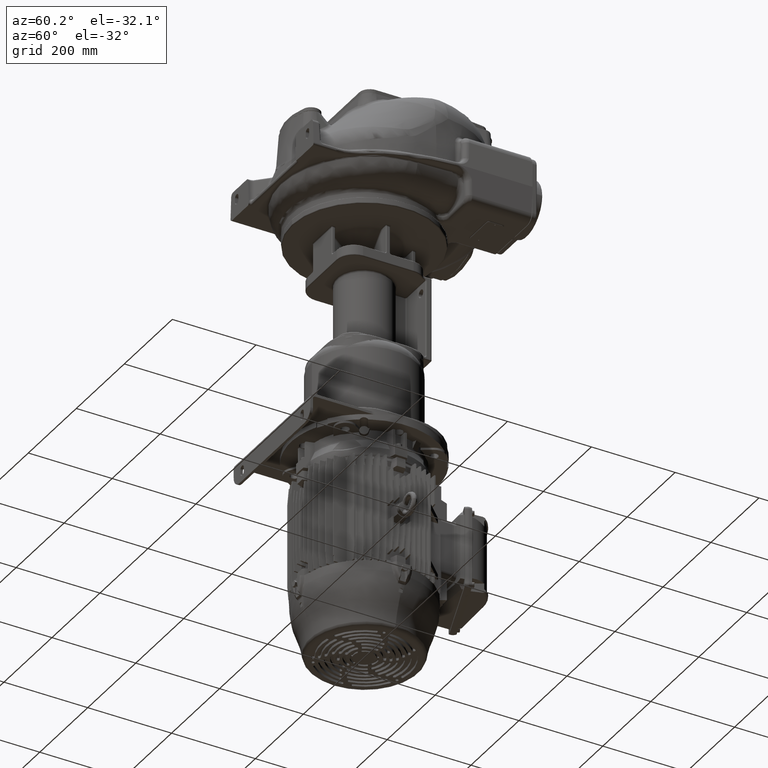
[diagram: clean part render]
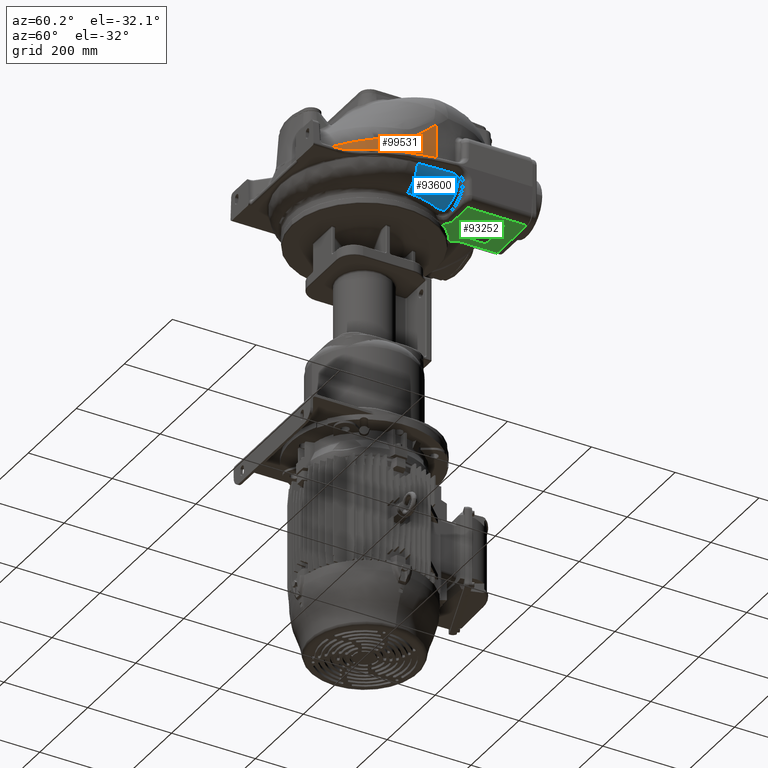
[diagram: same view with three faces highlighted in distinct colors, each labeled with its STEP entity id]
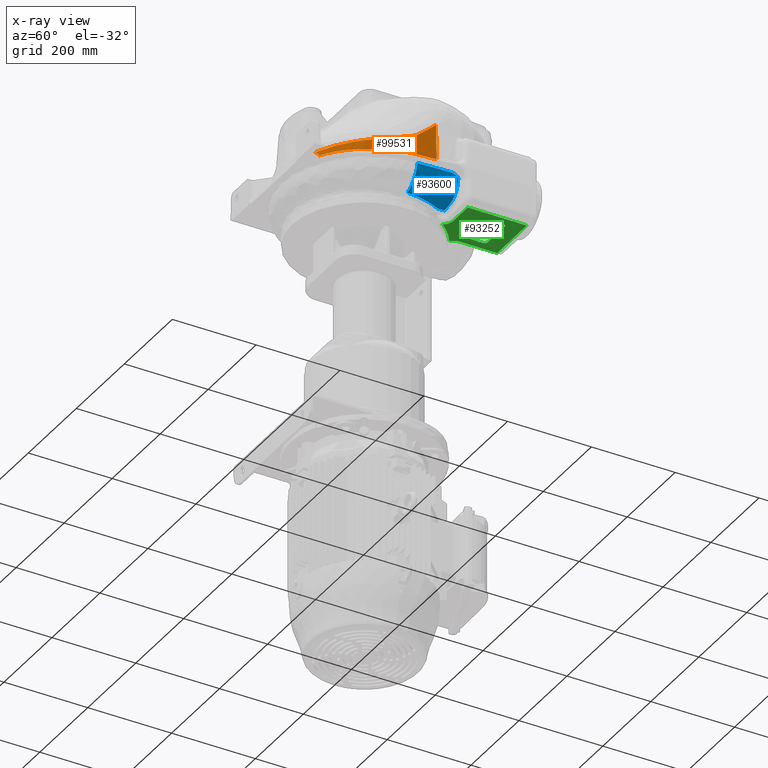
[diagram: x-ray of the same camera — body ghosted, the three highlighted faces saturated]
A machine part, auxiliary view with three faces highlighted in distinct colors.
The next image is the same camera in x-ray (body ghosted, the three faces saturated) — at least one of them is partly hidden behind the body in this view.
Their STEP definitions:

[orange] entity #99531 — the highlighted face is a freeform B-spline surface patch.
#30569=DIRECTION('',(-3.486993842813E-2,1.436406460808E-3,9.993908265191E-1));
#30570=VECTOR('',#30569,8.599166529515E1);
#30571=CARTESIAN_POINT('',(2.448156988390E2,2.633581640945E2,1.082550251649E1));
#30572=LINE('',#30571,#30570);
#30573=CARTESIAN_POINT('',(2.418171747648E2,2.634816830781E2,9.676478396956E1));
#30777=CARTESIAN_POINT('',(1.273312700607E2,3.949131298418E1,2.262182414170E1));
#30778=CARTESIAN_POINT('',(1.287484896253E2,4.019766627417E1,2.165105292137E1));
#30779=CARTESIAN_POINT('',(1.313899759625E2,4.153952306161E1,1.948203531594E1));
#30780=CARTESIAN_POINT('',(1.348855969834E2,4.335823460367E1,1.542793355545E1));
#30781=CARTESIAN_POINT('',(1.367201527825E2,4.431776327844E1,1.242212085072E1));
#30782=CARTESIAN_POINT('',(1.375349590689E2,4.473903715474E1,1.082561823353E1));
#30784=CARTESIAN_POINT('',(1.273312700607E2,3.949131298418E1,2.262182414170E1));
#30785=CARTESIAN_POINT('',(1.365039605994E2,4.433155891666E1,2.314353570086E1));
#30786=CARTESIAN_POINT('',(1.532245593646E2,5.487640295562E1,2.429496073703E1));
#30787=CARTESIAN_POINT('',(1.738237276010E2,7.211395865087E1,2.636221199682E1));
#30788=CARTESIAN_POINT('',(1.897392100725E2,8.897387947503E1,2.853667580657E1));
#30789=CARTESIAN_POINT('',(2.022431887349E2,1.052125541278E2,3.085400008532E1));
#30790=CARTESIAN_POINT('',(2.119872137185E2,1.205251476855E2,3.316381685629E1));
#30791=CARTESIAN_POINT('',(2.195647400226E2,1.348059834909E2,3.549266039241E1));
#30792=CARTESIAN_POINT('',(2.254219237023E2,1.480156076722E2,3.783884029023E1));
#30793=CARTESIAN_POINT('',(2.299076087563E2,1.601381204877E2,4.022529888096E1));
#30794=CARTESIAN_POINT('',(2.333204158362E2,1.712474320845E2,4.261823961609E1));
#30795=CARTESIAN_POINT('',(2.358813629247E2,1.813881513355E2,4.499838237106E1));
#30796=CARTESIAN_POINT('',(2.377651668605E2,1.906150289665E2,4.742428497862E1));
#30797=CARTESIAN_POINT('',(2.391079642988E2,1.989518066529E2,4.994577152961E1));
#30798=CARTESIAN_POINT('',(2.400113267083E2,2.063567701642E2,5.263241506790E1));
#30799=CARTESIAN_POINT('',(2.405944765117E2,2.128880105462E2,5.534689839443E1));
#30800=CARTESIAN_POINT('',(2.409165304187E2,2.187051657949E2,5.827510028594E1));
#30801=CARTESIAN_POINT('',(2.411051415674E2,2.248072717772E2,6.304990860092E1));
#30802=CARTESIAN_POINT('',(2.412608151929E2,2.311453602753E2,6.865180167727E1));
#30803=CARTESIAN_POINT('',(2.414400689501E2,2.382795068499E2,7.454867982467E1));
#30804=CARTESIAN_POINT('',(2.415922128662E2,2.459815499388E2,8.113268764132E1));
#30805=CARTESIAN_POINT('',(2.417219908119E2,2.543544403483E2,8.846800778066E1));
#30806=CARTESIAN_POINT('',(2.417889180335E2,2.603741315246E2,9.391065658138E1));
#30807=CARTESIAN_POINT('',(2.418171747648E2,2.634816830781E2,9.676478396956E1));
#30809=CARTESIAN_POINT('',(2.448156988390E2,2.633581640945E2,1.082550251649E1));
#30810=CARTESIAN_POINT('',(2.445175768365E2,2.561209265676E2,1.082550239019E1));
#30811=CARTESIAN_POINT('',(2.438696239552E2,2.419762658703E2,1.082550406516E1));
#30812=CARTESIAN_POINT('',(2.429053400273E2,2.232692165701E2,1.082549859572E1));
#30813=CARTESIAN_POINT('',(2.420014381886E2,2.107186166635E2,1.082550322426E1));
#30814=CARTESIAN_POINT('',(2.412477433011E2,2.047376393406E2,1.082549935503E1));
#30816=CARTESIAN_POINT('',(2.412477433011E2,2.047376393406E2,1.082549935503E1));
#30817=CARTESIAN_POINT('',(2.404274671051E2,1.982283380133E2,1.082549509434E1));
#30818=CARTESIAN_POINT('',(2.382288418898E2,1.852552275011E2,1.057997064187E1));
#30819=CARTESIAN_POINT('',(2.330331305345E2,1.656280266920E2,1.004572363457E1));
#30820=CARTESIAN_POINT('',(2.285598539731E2,1.533930477578E2,9.895799959657E0));
#30821=CARTESIAN_POINT('',(2.260838718663E2,1.474339517210E2,9.895804965467E0));
#30823=CARTESIAN_POINT('',(2.260838718663E2,1.474339517210E2,9.895804965467E0));
#30824=CARTESIAN_POINT('',(2.239959081066E2,1.424087182282E2,9.895804598046E0));
#30825=CARTESIAN_POINT('',(2.194532278092E2,1.325292826253E2,9.895804652691E0));
#30826=CARTESIAN_POINT('',(2.115811798791E2,1.183005841560E2,9.895804775832E0));
#30827=CARTESIAN_POINT('',(2.056624999576E2,1.092620905280E2,9.895808282209E0));
#30828=CARTESIAN_POINT('',(2.025445214320E2,1.048662706586E2,9.895806520474E0));
#30830=CARTESIAN_POINT('',(2.025445214320E2,1.048662706586E2,9.895806520474E0));
#30831=CARTESIAN_POINT('',(2.009646403773E2,1.026389086398E2,9.895801106922E0));
#30832=CARTESIAN_POINT('',(1.978152583227E2,9.838930680810E1,1.009199623530E1));
#30833=CARTESIAN_POINT('',(1.932122868641E2,9.262949979898E1,1.062235300872E1));
#30834=CARTESIAN_POINT('',(1.902073504720E2,8.910672549975E1,1.082550563842E1));
#30835=CARTESIAN_POINT('',(1.887325045828E2,8.742447525823E1,1.082550123001E1));
#30837=CARTESIAN_POINT('',(1.887325045828E2,8.742447525823E1,1.082550123001E1));
#30838=CARTESIAN_POINT('',(1.838005110175E2,8.179897107562E1,1.082550286834E1));
#30839=CARTESIAN_POINT('',(1.733706599998E2,7.108356733014E1,1.082552637669E1));
#30840=CARTESIAN_POINT('',(1.562012000768E2,5.677872320862E1,1.082544574634E1));
#30841=CARTESIAN_POINT('',(1.438798802355E2,4.852535842160E1,1.082561746673E1));
#30842=CARTESIAN_POINT('',(1.375349590689E2,4.473903715474E1,1.082561823353E1));
#40051=VERTEX_POINT('',#30809);
#40052=VERTEX_POINT('',#30814);
#40276=VERTEX_POINT('',#30823);
#40277=VERTEX_POINT('',#30828);
#40448=VERTEX_POINT('',#30777);
#40449=VERTEX_POINT('',#30782);
#40550=VERTEX_POINT('',#30573);
#40567=VERTEX_POINT('',#30837);
#99394=CARTESIAN_POINT('',(1.251863668929E2,3.781294564633E1,8.158425014903E0));
#99395=CARTESIAN_POINT('',(1.247090627227E2,3.875001253943E1,3.827300454352E1));
#99396=CARTESIAN_POINT('',(1.242317585526E2,3.968707943253E1,6.838758407213E1));
#99397=CARTESIAN_POINT('',(1.237544543824E2,4.062414632563E1,9.850216360075E1));
#99398=CARTESIAN_POINT('',(1.276841911409E2,3.908523996083E1,8.158425014903E0));
#99399=CARTESIAN_POINT('',(1.271944526426E2,4.001597329249E1,3.827300454352E1));
#99400=CARTESIAN_POINT('',(1.267047141443E2,4.094670662416E1,6.838758407213E1));
#99401=CARTESIAN_POINT('',(1.262149756460E2,4.187743995583E1,9.850216360075E1));
#99402=CARTESIAN_POINT('',(1.332739194747E2,4.207399979094E1,8.158425014903E0));
#99403=CARTESIAN_POINT('',(1.327563866656E2,4.298987104021E1,3.827300454352E1));
#99404=CARTESIAN_POINT('',(1.322388538565E2,4.390574228947E1,6.838758407213E1));
#99405=CARTESIAN_POINT('',(1.317213210473E2,4.482161353874E1,9.850216360075E1));
#99406=CARTESIAN_POINT('',(1.417721571215E2,4.712093771339E1,8.158425014903E0));
#99407=CARTESIAN_POINT('',(1.412124755568E2,4.801177561771E1,3.827300454352E1));
#99408=CARTESIAN_POINT('',(1.406527939922E2,4.890261352202E1,6.838758407213E1));
#99409=CARTESIAN_POINT('',(1.400931124276E2,4.979345142634E1,9.850216360075E1));
#99410=CARTESIAN_POINT('',(1.506332448481E2,5.300155396894E1,8.158425014903E0));
#99411=CARTESIAN_POINT('',(1.500297394013E2,5.386330613820E1,3.827300454352E1));
#99412=CARTESIAN_POINT('',(1.494262339545E2,5.472505830747E1,6.838758407213E1));
#99413=CARTESIAN_POINT('',(1.488227285077E2,5.558681047673E1,9.850216360075E1));
#99414=CARTESIAN_POINT('',(1.592136407582E2,5.933562205237E1,8.158425014903E0));
#99415=CARTESIAN_POINT('',(1.585678198785E2,6.016613455487E1,3.827300454352E1));
#99416=CARTESIAN_POINT('',(1.579219989987E2,6.099664705738E1,6.838758407213E1));
#99417=CARTESIAN_POINT('',(1.572761781190E2,6.182715955988E1,9.850216360075E1));
#99418=CARTESIAN_POINT('',(1.674901761488E2,6.610979559063E1,8.158425014903E0));
#99419=CARTESIAN_POINT('',(1.668036540522E2,6.690699257790E1,3.827300454352E1));
#99420=CARTESIAN_POINT('',(1.661171319556E2,6.770418956517E1,6.838758407213E1));
#99421=CARTESIAN_POINT('',(1.654306098590E2,6.850138655244E1,9.850216360075E1));
#99422=CARTESIAN_POINT('',(1.754403141969E2,7.330954619404E1,8.158425014903E0));
#99423=CARTESIAN_POINT('',(1.747148068305E2,7.407143508793E1,3.827300454352E1));
#99424=CARTESIAN_POINT('',(1.739892994641E2,7.483332398183E1,6.838758407213E1));
#99425=CARTESIAN_POINT('',(1.732637920977E2,7.559521287572E1,9.850216360075E1));
#99426=CARTESIAN_POINT('',(1.830422101811E2,8.091919324046E1,8.158425014903E0));
#99427=CARTESIAN_POINT('',(1.822795309374E2,8.164386971824E1,3.827300454352E1));
#99428=CARTESIAN_POINT('',(1.815168516938E2,8.236854619601E1,6.838758407213E1));
#99429=CARTESIAN_POINT('',(1.807541724502E2,8.309322267379E1,9.850216360075E1));
#99430=CARTESIAN_POINT('',(1.902747702854E2,8.892193667061E1,8.158425014903E0));
#99431=CARTESIAN_POINT('',(1.894768254596E2,8.960758940993E1,3.827300454352E1));
#99432=CARTESIAN_POINT('',(1.886788806338E2,9.029324214925E1,6.838758407213E1));
#99433=CARTESIAN_POINT('',(1.878809358079E2,9.097889488857E1,9.850216360075E1));
#99434=CARTESIAN_POINT('',(1.971177089273E2,9.729989296781E1,8.158425014903E0));
#99435=CARTESIAN_POINT('',(1.962864929827E2,9.794480822037E1,3.827300454352E1));
#99436=CARTESIAN_POINT('',(1.954552770381E2,9.858972347294E1,6.838758407213E1));
#99437=CARTESIAN_POINT('',(1.946240610935E2,9.923463872550E1,9.850216360075E1));
#99438=CARTESIAN_POINT('',(2.035516041362E2,1.060341334035E2,8.158425014903E0));
#99439=CARTESIAN_POINT('',(2.026891946321E2,1.066366991370E2,3.827300454352E1));
#99440=CARTESIAN_POINT('',(2.018267851280E2,1.072392648705E2,6.838758407213E1));
#99441=CARTESIAN_POINT('',(2.009643756239E2,1.078418306040E2,9.850216360075E1));
#99442=CARTESIAN_POINT('',(2.095579518813E2,1.151047274556E2,8.158425014903E0));
#99443=CARTESIAN_POINT('',(2.086665045231E2,1.156634378046E2,3.827300454352E1));
#99444=CARTESIAN_POINT('',(2.077750571649E2,1.162221481535E2,6.838758407213E1));
#99445=CARTESIAN_POINT('',(2.068836098067E2,1.167808585025E2,9.850216360075E1));
#99446=CARTESIAN_POINT('',(2.151192158030E2,1.244907808120E2,8.158425014903E0));
#99447=CARTESIAN_POINT('',(2.142009583987E2,1.250042386266E2,3.827300454352E1));
#99448=CARTESIAN_POINT('',(2.132827009944E2,1.255176964412E2,6.838758407213E1));
#99449=CARTESIAN_POINT('',(2.123644435901E2,1.260311542558E2,9.850216360075E1));
#99450=CARTESIAN_POINT('',(2.202188831599E2,1.341705045515E2,8.158425014903E0));
#99451=CARTESIAN_POINT('',(2.192761117516E2,1.346374282432E2,3.827300454352E1));
#99452=CARTESIAN_POINT('',(2.183333403434E2,1.351043519350E2,6.838758407213E1));
#99453=CARTESIAN_POINT('',(2.173905689351E2,1.355712756268E2,9.850216360075E1));
#99454=CARTESIAN_POINT('',(2.248414918731E2,1.441211880256E2,8.158425014903E0));
#99455=CARTESIAN_POINT('',(2.238765608016E2,1.445404060588E2,3.827300454352E1));
#99456=CARTESIAN_POINT('',(2.229116297301E2,1.449596240919E2,6.838758407213E1));
#99457=CARTESIAN_POINT('',(2.219466986586E2,1.453788421251E2,9.850216360075E1));
#99458=CARTESIAN_POINT('',(2.289727391939E2,1.543195143076E2,8.158425014903E0));
#99459=CARTESIAN_POINT('',(2.279880649054E2,1.546899887293E2,3.827300454352E1));
#99460=CARTESIAN_POINT('',(2.270033906170E2,1.550604631510E2,6.838758407213E1));
#99461=CARTESIAN_POINT('',(2.260187163285E2,1.554309375727E2,9.850216360075E1));
#99462=CARTESIAN_POINT('',(2.325993253258E2,1.647407180521E2,8.158425014903E0));
#99463=CARTESIAN_POINT('',(2.315973600522E2,1.650615061942E2,3.827300454352E1));
#99464=CARTESIAN_POINT('',(2.305953947786E2,1.653822943363E2,6.838758407213E1));
#99465=CARTESIAN_POINT('',(2.295934295049E2,1.657030824784E2,9.850216360075E1));
#99466=CARTESIAN_POINT('',(2.357096063251E2,1.753616601423E2,8.158425014903E0));
#99467=CARTESIAN_POINT('',(2.346928677473E2,1.756319659571E2,3.827300454352E1));
#99468=CARTESIAN_POINT('',(2.336761291696E2,1.759022717719E2,6.838758407213E1));
#99469=CARTESIAN_POINT('',(2.326593905919E2,1.761725775868E2,9.850216360075E1));
#99470=CARTESIAN_POINT('',(2.382917550289E2,1.861508601103E2,8.158425014903E0));
#99471=CARTESIAN_POINT('',(2.372627785823E2,1.863701310358E2,3.827300454352E1));
#99472=CARTESIAN_POINT('',(2.362338021357E2,1.865894019612E2,6.838758407213E1));
#99473=CARTESIAN_POINT('',(2.352048256891E2,1.868086728867E2,9.850216360075E1));
#99474=CARTESIAN_POINT('',(2.403395059245E2,1.971013120892E2,8.158425014903E0));
#99475=CARTESIAN_POINT('',(2.393008063011E2,1.972682290348E2,3.827300454352E1));
#99476=CARTESIAN_POINT('',(2.382621066776E2,1.974351459803E2,6.838758407213E1));
#99477=CARTESIAN_POINT('',(2.372234070541E2,1.976020629258E2,9.850216360075E1));
#99478=CARTESIAN_POINT('',(2.415848085408E2,2.062829071926E2,8.158425014903E0));
#99479=CARTESIAN_POINT('',(2.405404263811E2,2.064086064309E2,3.827300454352E1));
#99480=CARTESIAN_POINT('',(2.394960442214E2,2.065343056692E2,6.838758407213E1));
#99481=CARTESIAN_POINT('',(2.384516620617E2,2.066600049075E2,9.850216360075E1));
#99482=CARTESIAN_POINT('',(2.423171892975E2,2.137426921792E2,8.158425014903E0));
#99483=CARTESIAN_POINT('',(2.412690400069E2,2.138296401406E2,3.827300454352E1));
#99484=CARTESIAN_POINT('',(2.402208907163E2,2.139165881021E2,6.838758407213E1));
#99485=CARTESIAN_POINT('',(2.391727414256E2,2.140035360635E2,9.850216360075E1));
#99486=CARTESIAN_POINT('',(2.427600067314E2,2.200923653243E2,8.158425014903E0));
#99487=CARTESIAN_POINT('',(2.417101214408E2,2.201536571806E2,3.827300454352E1));
#99488=CARTESIAN_POINT('',(2.406602361502E2,2.202149490368E2,6.838758407213E1));
#99489=CARTESIAN_POINT('',(2.396103508596E2,2.202762408931E2,9.850216360075E1));
#99490=CARTESIAN_POINT('',(2.431432171399E2,2.269711440200E2,8.158425014903E0));
#99491=CARTESIAN_POINT('',(2.420932157282E2,2.270292991071E2,3.827300454352E1));
#99492=CARTESIAN_POINT('',(2.410432143165E2,2.270874541941E2,6.838758407213E1));
#99493=CARTESIAN_POINT('',(2.399932129047E2,2.271456092812E2,9.850216360075E1));
#99494=CARTESIAN_POINT('',(2.437104711983E2,2.371554123517E2,8.158425014903E0));
#99495=CARTESIAN_POINT('',(2.426603362085E2,2.372115757943E2,3.827300454352E1));
#99496=CARTESIAN_POINT('',(2.416102012187E2,2.372677392368E2,6.838758407213E1));
#99497=CARTESIAN_POINT('',(2.405600662288E2,2.373239026793E2,9.850216360075E1));
#99498=CARTESIAN_POINT('',(2.443115370474E2,2.493421134380E2,8.158425014903E0));
#99499=CARTESIAN_POINT('',(2.432609965420E2,2.493900282500E2,3.827300454352E1));
#99500=CARTESIAN_POINT('',(2.422104560366E2,2.494379430621E2,6.838758407213E1));
#99501=CARTESIAN_POINT('',(2.411599155311E2,2.494858578741E2,9.850216360075E1));
#99502=CARTESIAN_POINT('',(2.447638001734E2,2.597908948060E2,8.158425014903E0));
#99503=CARTESIAN_POINT('',(2.437131156158E2,2.598353624992E2,3.827300454352E1));
#99504=CARTESIAN_POINT('',(2.426624310582E2,2.598798301924E2,6.838758407213E1));
#99505=CARTESIAN_POINT('',(2.416117465006E2,2.599242978856E2,9.850216360075E1));
#99506=CARTESIAN_POINT('',(2.449800006032E2,2.650925622734E2,8.158425014903E0));
#99507=CARTESIAN_POINT('',(2.439292436742E2,2.651352680883E2,3.827300454352E1));
#99508=CARTESIAN_POINT('',(2.428784867453E2,2.651779739033E2,6.838758407213E1));
#99509=CARTESIAN_POINT('',(2.418277298164E2,2.652206797182E2,9.850216360075E1));
#99510=CARTESIAN_POINT('',(2.450150148698E2,2.659593824082E2,8.158425014903E0));
#99511=CARTESIAN_POINT('',(2.439642458230E2,2.660017942502E2,3.827300454352E1));
#99512=CARTESIAN_POINT('',(2.429134767763E2,2.660442060921E2,6.838758407213E1));
#99513=CARTESIAN_POINT('',(2.418627077295E2,2.660866179341E2,9.850216360075E1));
#99514=B_SPLINE_SURFACE_WITH_KNOTS('',3,3,((#99394,#99395,#99396,#99397),
(#99398,#99399,#99400,#99401),(#99402,#99403,#99404,#99405),(#99406,#99407,
#99408,#99409),(#99410,#99411,#99412,#99413),(#99414,#99415,#99416,#99417),(
#99418,#99419,#99420,#99421),(#99422,#99423,#99424,#99425),(#99426,#99427,
#99428,#99429),(#99430,#99431,#99432,#99433),(#99434,#99435,#99436,#99437),(
#99438,#99439,#99440,#99441),(#99442,#99443,#99444,#99445),(#99446,#99447,
#99448,#99449),(#99450,#99451,#99452,#99453),(#99454,#99455,#99456,#99457),(
#99458,#99459,#99460,#99461),(#99462,#99463,#99464,#99465),(#99466,#99467,
#99468,#99469),(#99470,#99471,#99472,#99473),(#99474,#99475,#99476,#99477),(
#99478,#99479,#99480,#99481),(#99482,#99483,#99484,#99485),(#99486,#99487,
#99488,#99489),(#99490,#99491,#99492,#99493),(#99494,#99495,#99496,#99497),(
#99498,#99499,#99500,#99501),(#99502,#99503,#99504,#99505),(#99506,#99507,
#99508,#99509),(#99510,#99511,#99512,#99513)),.UNSPECIFIED.,.F.,.F.,.F.,(4,1,1,
1,1,1,1,1,1,1,1,1,1,1,1,1,1,1,1,1,1,1,1,1,1,1,1,4),(4,4),(5.977727824164E-1,
6.101552203106E-1,6.257683686791E-1,6.414284268221E-1,6.571355356804E-1,
6.728898366180E-1,6.886914714237E-1,7.045405823123E-1,7.204373119260E-1,
7.363818033354E-1,7.523742000410E-1,7.684146459745E-1,7.845032855001E-1,
8.006402634156E-1,8.168257249539E-1,8.330598157843E-1,8.493426820137E-1,
8.656744701881E-1,8.820553272935E-1,8.984854007579E-1,9.149648384520E-1,
9.232293135714E-1,9.314937886908E-1,9.433923464545E-1,9.552909042181E-1,
9.790880197454E-1,1.E0,1.004096367012E0),(4.081698968179E-2,4.928110251650E-1),
.UNSPECIFIED.);
#99516=ORIENTED_EDGE('',*,*,#99515,.F.);
#99518=ORIENTED_EDGE('',*,*,#99517,.T.);
#99519=ORIENTED_EDGE('',*,*,#98700,.F.);
#99520=ORIENTED_EDGE('',*,*,#99384,.T.);
#99522=ORIENTED_EDGE('',*,*,#99521,.T.);
#99524=ORIENTED_EDGE('',*,*,#99523,.T.);
#99526=ORIENTED_EDGE('',*,*,#99525,.T.);
#99528=ORIENTED_EDGE('',*,*,#99527,.T.);
#99529=EDGE_LOOP('',(#99516,#99518,#99519,#99520,#99522,#99524,#99526,#99528));
#99530=FACE_OUTER_BOUND('',#99529,.F.);
#99531=ADVANCED_FACE('',(#99530),#99514,.T.);
#30783=B_SPLINE_CURVE_WITH_KNOTS('',3,(#30777,#30778,#30779,#30780,#30781,
#30782),.UNSPECIFIED.,.F.,.F.,(4,1,1,4),(0.E0,3.333333333333E-1,
6.666666666667E-1,1.E0),.UNSPECIFIED.);
#30808=B_SPLINE_CURVE_WITH_KNOTS('',3,(#30784,#30785,#30786,#30787,#30788,
#30789,#30790,#30791,#30792,#30793,#30794,#30795,#30796,#30797,#30798,#30799,
#30800,#30801,#30802,#30803,#30804,#30805,#30806,#30807),.UNSPECIFIED.,.F.,.F.,(
4,1,1,1,1,1,1,1,1,1,1,1,1,1,1,1,1,1,1,1,1,4),(0.E0,4.761904761905E-2,
9.523809523810E-2,1.428571428571E-1,1.904761904762E-1,2.380952380952E-1,
2.857142857143E-1,3.333333333333E-1,3.809523809524E-1,4.285714285714E-1,
4.761904761905E-1,5.238095238095E-1,5.714285714286E-1,6.190476190476E-1,
6.666666666667E-1,7.142857142857E-1,7.619047619048E-1,8.095238095238E-1,
8.571428571429E-1,9.047619047619E-1,9.523809523810E-1,1.E0),.UNSPECIFIED.);
#30815=B_SPLINE_CURVE_WITH_KNOTS('',3,(#30809,#30810,#30811,#30812,#30813,
#30814),.UNSPECIFIED.,.F.,.F.,(4,1,1,4),(0.E0,3.333333333333E-1,
6.666666666667E-1,1.E0),.UNSPECIFIED.);
#30822=B_SPLINE_CURVE_WITH_KNOTS('',3,(#30816,#30817,#30818,#30819,#30820,
#30821),.UNSPECIFIED.,.F.,.F.,(4,1,1,4),(0.E0,3.333333333333E-1,
6.666666666667E-1,1.E0),.UNSPECIFIED.);
#30829=B_SPLINE_CURVE_WITH_KNOTS('',3,(#30823,#30824,#30825,#30826,#30827,
#30828),.UNSPECIFIED.,.F.,.F.,(4,1,1,4),(0.E0,3.333333333333E-1,
6.666666666667E-1,1.E0),.UNSPECIFIED.);
#30836=B_SPLINE_CURVE_WITH_KNOTS('',3,(#30830,#30831,#30832,#30833,#30834,
#30835),.UNSPECIFIED.,.F.,.F.,(4,1,1,4),(0.E0,3.333333333333E-1,
6.666666666667E-1,1.E0),.UNSPECIFIED.);
#30843=B_SPLINE_CURVE_WITH_KNOTS('',3,(#30837,#30838,#30839,#30840,#30841,
#30842),.UNSPECIFIED.,.F.,.F.,(4,1,1,4),(0.E0,3.333333333333E-1,
6.666666666667E-1,1.E0),.UNSPECIFIED.);
#98700=EDGE_CURVE('',#40051,#40550,#30572,.T.);
#99384=EDGE_CURVE('',#40051,#40052,#30815,.T.);
#99515=EDGE_CURVE('',#40448,#40449,#30783,.T.);
#99517=EDGE_CURVE('',#40448,#40550,#30808,.T.);
#99521=EDGE_CURVE('',#40052,#40276,#30822,.T.);
#99523=EDGE_CURVE('',#40276,#40277,#30829,.T.);
#99525=EDGE_CURVE('',#40277,#40567,#30836,.T.);
#99527=EDGE_CURVE('',#40567,#40449,#30843,.T.);

[blue] entity #93600 — the highlighted face is a freeform B-spline surface patch.
#28775=CARTESIAN_POINT('',(2.455453561406E2,2.978241042079E2,
-1.025589512667E1));
#28776=CARTESIAN_POINT('',(2.455923071885E2,2.996126542415E2,
-1.026053206905E1));
#28777=CARTESIAN_POINT('',(2.456194769831E2,3.030689939567E2,
-1.067209414179E1));
#28778=CARTESIAN_POINT('',(2.454605138781E2,3.080050797368E2,
-1.243036875598E1));
#28779=CARTESIAN_POINT('',(2.450489554615E2,3.123622031915E2,
-1.525550879803E1));
#28780=CARTESIAN_POINT('',(2.445895013854E2,3.146441329705E2,
-1.761157751208E1));
#28781=CARTESIAN_POINT('',(2.442907399923E2,3.156546839226E2,
-1.892568862433E1));
#28783=CARTESIAN_POINT('',(2.442907399923E2,3.156546839226E2,
-1.892568862433E1));
#28784=CARTESIAN_POINT('',(2.433637546639E2,3.158910756898E2,
-2.270355206136E1));
#28785=CARTESIAN_POINT('',(2.410192729354E2,3.163036980523E2,
-2.979340952923E1));
#28786=CARTESIAN_POINT('',(2.363475486796E2,3.168362147482E2,
-3.838482425139E1));
#28787=CARTESIAN_POINT('',(2.307729549020E2,3.172408320883E2,
-4.531705327155E1));
#28788=CARTESIAN_POINT('',(2.240774514200E2,3.175560441432E2,
-5.102685968167E1));
#28789=CARTESIAN_POINT('',(2.159276219285E2,3.177799718743E2,
-5.572949560339E1));
#28790=CARTESIAN_POINT('',(2.060462152982E2,3.179178300350E2,
-5.927063348844E1));
#28791=CARTESIAN_POINT('',(1.944462653579E2,3.179654460192E2,
-6.148553242874E1));
#28792=CARTESIAN_POINT('',(1.856416937744E2,3.179924242226E2,
-6.199403856957E1));
#28793=CARTESIAN_POINT('',(1.810150969845E2,3.179776914866E2,
-6.199999534653E1));
#28795=CARTESIAN_POINT('',(1.810109082169E2,3.022883115637E2,
-6.199999788909E1));
#28796=CARTESIAN_POINT('',(1.810136968303E2,3.075252777879E2,
-6.199999551289E1));
#28797=CARTESIAN_POINT('',(1.810151249253E2,3.127531045009E2,
-6.199999587837E1));
#28798=CARTESIAN_POINT('',(1.810150969845E2,3.179776914866E2,
-6.199999534653E1));
#28800=CARTESIAN_POINT('',(1.810109082169E2,3.022883115637E2,
-6.199999788909E1));
#28801=CARTESIAN_POINT('',(1.838118196925E2,2.965930821796E2,
-6.199744115877E1));
#28802=CARTESIAN_POINT('',(1.889135585178E2,2.845535376644E2,
-6.177966429658E1));
#28803=CARTESIAN_POINT('',(1.949389537325E2,2.642955899118E2,
-6.082234912395E1));
#28804=CARTESIAN_POINT('',(1.986814687553E2,2.429269553814E2,
-5.963975290456E1));
#28805=CARTESIAN_POINT('',(1.995012728757E2,2.278806998746E2,
-5.925977224869E1));
#28806=CARTESIAN_POINT('',(1.995258701496E2,2.201129447325E2,
-5.916909439470E1));
#28808=CARTESIAN_POINT('',(1.995258701496E2,2.201129447325E2,
-5.916909439470E1));
#28809=CARTESIAN_POINT('',(1.995251351748E2,2.200339774626E2,
-5.916848072379E1));
#28810=CARTESIAN_POINT('',(1.995262316061E2,2.199556749912E2,
-5.916746266889E1));
#28811=CARTESIAN_POINT('',(1.995254930212E2,2.198767022094E2,
-5.916684251879E1));
#28813=CARTESIAN_POINT('',(1.995254930212E2,2.198767022094E2,
-5.916684251879E1));
#28814=CARTESIAN_POINT('',(2.012862758722E2,2.198599892614E2,
-5.861539147830E1));
#28815=CARTESIAN_POINT('',(2.068400769254E2,2.198035409127E2,
-5.659984907690E1));
#28816=CARTESIAN_POINT('',(2.156669233408E2,2.197164609426E2,
-5.188004971270E1));
#28817=CARTESIAN_POINT('',(2.251198556505E2,2.195961515524E2,
-4.411717179944E1));
#28818=CARTESIAN_POINT('',(2.328752383668E2,2.194748036736E2,
-3.465939572615E1));
#28819=CARTESIAN_POINT('',(2.386352686991E2,2.193577415574E2,
-2.386928424299E1));
#28820=CARTESIAN_POINT('',(2.411865120035E2,2.193118446787E2,
-1.544815780028E1));
#28821=CARTESIAN_POINT('',(2.420309093590E2,2.192862955119E2,
-1.081760230919E1));
#28822=CARTESIAN_POINT('',(2.421368989397E2,2.192831059374E2,
-1.017971400711E1));
#28824=CARTESIAN_POINT('',(2.421368989397E2,2.192831059374E2,
-1.017971400711E1));
#28825=CARTESIAN_POINT('',(2.426376112366E2,2.275119287216E2,
-1.016987578208E1));
#28826=CARTESIAN_POINT('',(2.435268392650E2,2.442359497207E2,
-1.015019254123E1));
#28827=CARTESIAN_POINT('',(2.447135052779E2,2.703793861197E2,
-1.019244499981E1));
#28828=CARTESIAN_POINT('',(2.453017473008E2,2.885505102443E2,
-1.023281072441E1));
#28829=CARTESIAN_POINT('',(2.455453561406E2,2.978241042079E2,
-1.025589512667E1));
#28916=CARTESIAN_POINT('',(2.421368989397E2,2.192831059374E2,
-1.017971400711E1));
#28918=CARTESIAN_POINT('',(1.995254930212E2,2.198767022094E2,
-5.916684251879E1));
#39814=VERTEX_POINT('',#28916);
#40132=VERTEX_POINT('',#28775);
#40133=VERTEX_POINT('',#28781);
#40233=VERTEX_POINT('',#28793);
#40318=VERTEX_POINT('',#28918);
#40322=VERTEX_POINT('',#28808);
#40324=VERTEX_POINT('',#28800);
#93496=CARTESIAN_POINT('',(1.801254389726E2,2.190235629809E2,
-6.199401018487E1));
#93497=CARTESIAN_POINT('',(1.844737029668E2,2.190111082806E2,
-6.205468798348E1));
#93498=CARTESIAN_POINT('',(1.928895873614E2,2.189585369311E2,
-6.128098333086E1));
#93499=CARTESIAN_POINT('',(2.048651343832E2,2.188405791722E2,
-5.763815672595E1));
#93500=CARTESIAN_POINT('',(2.156449228546E2,2.187365941332E2,
-5.186665187922E1));
#93501=CARTESIAN_POINT('',(2.250921667249E2,2.186197776029E2,
-4.409869302830E1));
#93502=CARTESIAN_POINT('',(2.328391778212E2,2.184995210583E2,
-3.463615430512E1));
#93503=CARTESIAN_POINT('',(2.385868529073E2,2.183840245076E2,
-2.384854236838E1));
#93504=CARTESIAN_POINT('',(2.412517863823E2,2.183359232909E2,
-1.503741747908E1));
#93505=CARTESIAN_POINT('',(2.421162656432E2,2.183130424752E2,
-1.000028679697E1));
#93506=CARTESIAN_POINT('',(2.422681602855E2,2.183084018361E2,
-8.955919398999E0));
#93507=CARTESIAN_POINT('',(1.800982146443E2,2.248720590773E2,
-6.199228942683E1));
#93508=CARTESIAN_POINT('',(1.844606026432E2,2.248747466313E2,
-6.206116663144E1));
#93509=CARTESIAN_POINT('',(1.929058087581E2,2.248393667734E2,
-6.131277892576E1));
#93510=CARTESIAN_POINT('',(2.049535215222E2,2.247177001288E2,
-5.770045975390E1));
#93511=CARTESIAN_POINT('',(2.157768391978E2,2.245923984554E2,
-5.194614947821E1));
#93512=CARTESIAN_POINT('',(2.252579097889E2,2.244570455868E2,
-4.420933302548E1));
#93513=CARTESIAN_POINT('',(2.330550767828E2,2.243284005903E2,
-3.477464576660E1));
#93514=CARTESIAN_POINT('',(2.388760991298E2,2.242086356783E2,
-2.397962450489E1));
#93515=CARTESIAN_POINT('',(2.415805649019E2,2.241462241803E2,
-1.512599299950E1));
#93516=CARTESIAN_POINT('',(2.424609488403E2,2.241092828200E2,
-1.006945297242E1));
#93517=CARTESIAN_POINT('',(2.426159498210E2,2.241014582301E2,
-9.021217698887E0));
#93518=CARTESIAN_POINT('',(1.801258940606E2,2.362597989581E2,
-6.199468148263E1));
#93519=CARTESIAN_POINT('',(1.844918751646E2,2.362763038024E2,
-6.205015835979E1));
#93520=CARTESIAN_POINT('',(1.929479857904E2,2.362518629006E2,
-6.132109082733E1));
#93521=CARTESIAN_POINT('',(2.050808744369E2,2.361066494546E2,
-5.778932125410E1));
#93522=CARTESIAN_POINT('',(2.159888972988E2,2.359320048800E2,
-5.211128844715E1));
#93523=CARTESIAN_POINT('',(2.255737926225E2,2.357559575323E2,
-4.443117467533E1));
#93524=CARTESIAN_POINT('',(2.334724693085E2,2.356111091655E2,
-3.500435375561E1));
#93525=CARTESIAN_POINT('',(2.393860914942E2,2.354887243882E2,
-2.418228232358E1));
#93526=CARTESIAN_POINT('',(2.421412843587E2,2.354071755884E2,
-1.528135927924E1));
#93527=CARTESIAN_POINT('',(2.430539363346E2,2.353501350083E2,
-1.021109431835E1));
#93528=CARTESIAN_POINT('',(2.432159766521E2,2.353377265683E2,
-9.160442946487E0));
#93529=CARTESIAN_POINT('',(1.801228251308E2,2.532094411215E2,
-6.199480347546E1));
#93530=CARTESIAN_POINT('',(1.844730232107E2,2.532079748693E2,
-6.204682632351E1));
#93531=CARTESIAN_POINT('',(1.929150206975E2,2.531451395845E2,
-6.139409866438E1));
#93532=CARTESIAN_POINT('',(2.051556063189E2,2.529283282827E2,
-5.810131887115E1));
#93533=CARTESIAN_POINT('',(2.162883315759E2,2.526679378716E2,
-5.263838393673E1));
#93534=CARTESIAN_POINT('',(2.262022464039E2,2.524246069333E2,
-4.498287138450E1));
#93535=CARTESIAN_POINT('',(2.343090072756E2,2.522529458695E2,
-3.537009558822E1));
#93536=CARTESIAN_POINT('',(2.402349657780E2,2.521338312613E2,
-2.437299595819E1));
#93537=CARTESIAN_POINT('',(2.429523269949E2,2.520451733878E2,
-1.540334509626E1));
#93538=CARTESIAN_POINT('',(2.438652852905E2,2.519793976762E2,
-1.032351887051E1));
#93539=CARTESIAN_POINT('',(2.440286249886E2,2.519649753523E2,
-9.271936130459E0));
#93540=CARTESIAN_POINT('',(1.801137859866E2,2.698362208549E2,
-6.199429794141E1));
#93541=CARTESIAN_POINT('',(1.844287479741E2,2.698440395974E2,
-6.204546425101E1));
#93542=CARTESIAN_POINT('',(1.928247229978E2,2.697867851045E2,
-6.148717041489E1));
#93543=CARTESIAN_POINT('',(2.051404016847E2,2.695416878075E2,
-5.850712103793E1));
#93544=CARTESIAN_POINT('',(2.165566575263E2,2.692198895195E2,
-5.333601444619E1));
#93545=CARTESIAN_POINT('',(2.269193393337E2,2.689126609616E2,
-4.567320419509E1));
#93546=CARTESIAN_POINT('',(2.352621457787E2,2.687005678767E2,
-3.573678647280E1));
#93547=CARTESIAN_POINT('',(2.410968473964E2,2.685567230785E2,
-2.447495811553E1));
#93548=CARTESIAN_POINT('',(2.436939778154E2,2.684307897950E2,
-1.544850945855E1));
#93549=CARTESIAN_POINT('',(2.445747589213E2,2.683351571781E2,
-1.037173169554E1));
#93550=CARTESIAN_POINT('',(2.447332472162E2,2.683141670817E2,
-9.322077195302E0));
#93551=CARTESIAN_POINT('',(1.801476924705E2,2.919210028106E2,
-6.199674243466E1));
#93552=CARTESIAN_POINT('',(1.843907377490E2,2.919320680509E2,
-6.203088825162E1));
#93553=CARTESIAN_POINT('',(1.926795826721E2,2.918759233594E2,
-6.158357830305E1));
#93554=CARTESIAN_POINT('',(2.050333365598E2,2.916091256772E2,
-5.905417301890E1));
#93555=CARTESIAN_POINT('',(2.168482814061E2,2.912325736060E2,
-5.433618033856E1));
#93556=CARTESIAN_POINT('',(2.278906949821E2,2.908549522985E2,
-4.665520791693E1));
#93557=CARTESIAN_POINT('',(2.365472212193E2,2.905835988710E2,
-3.618498075272E1));
#93558=CARTESIAN_POINT('',(2.421574220921E2,2.903872211881E2,
-2.451747693098E1));
#93559=CARTESIAN_POINT('',(2.445340927936E2,2.902023102607E2,
-1.544932063341E1));
#93560=CARTESIAN_POINT('',(2.453548857537E2,2.900672266173E2,
-1.039847984509E1));
#93561=CARTESIAN_POINT('',(2.455040485580E2,2.900378170073E2,
-9.356032764944E0));
#93562=CARTESIAN_POINT('',(1.801708633586E2,3.084402681077E2,
-6.199816410326E1));
#93563=CARTESIAN_POINT('',(1.843520813371E2,3.084467938421E2,
-6.202173989903E1));
#93564=CARTESIAN_POINT('',(1.925457131024E2,3.083897044287E2,
-6.165375561071E1));
#93565=CARTESIAN_POINT('',(2.048977632289E2,3.081313403147E2,
-5.945601282234E1));
#93566=CARTESIAN_POINT('',(2.170128629685E2,3.077532847920E2,
-5.509337063937E1));
#93567=CARTESIAN_POINT('',(2.285900859158E2,3.073491934685E2,
-4.739705974347E1));
#93568=CARTESIAN_POINT('',(2.374557165931E2,3.070306507084E2,
-3.647291048092E1));
#93569=CARTESIAN_POINT('',(2.428301048281E2,3.067712704823E2,
-2.447718991485E1));
#93570=CARTESIAN_POINT('',(2.450108812417E2,3.065323634294E2,
-1.539543220180E1));
#93571=CARTESIAN_POINT('',(2.457730880486E2,3.063690975819E2,
-1.037208453204E1));
#93572=CARTESIAN_POINT('',(2.459125211815E2,3.063339815837E2,
-9.336642823429E0));
#93573=CARTESIAN_POINT('',(1.801769168657E2,3.193921070879E2,
-6.199846014645E1));
#93574=CARTESIAN_POINT('',(1.843240598314E2,3.193963847266E2,
-6.201880849941E1));
#93575=CARTESIAN_POINT('',(1.924653074181E2,3.193433503866E2,
-6.169538731215E1));
#93576=CARTESIAN_POINT('',(2.048154307368E2,3.191056858365E2,
-5.967466133039E1));
#93577=CARTESIAN_POINT('',(2.170956211217E2,3.187480904247E2,
-5.550424203084E1));
#93578=CARTESIAN_POINT('',(2.289668103167E2,3.183455597415E2,
-4.779672235325E1));
#93579=CARTESIAN_POINT('',(2.379384506882E2,3.179995713512E2,
-3.661482332764E1));
#93580=CARTESIAN_POINT('',(2.431724186453E2,3.176940715078E2,
-2.443705599281E1));
#93581=CARTESIAN_POINT('',(2.452423073176E2,3.174201859114E2,
-1.535036984524E1));
#93582=CARTESIAN_POINT('',(2.459697658737E2,3.172407575250E2,
-1.034337085731E1));
#93583=CARTESIAN_POINT('',(2.461032771318E2,3.172024701357E2,
-9.312030026310E0));
#93584=B_SPLINE_SURFACE_WITH_KNOTS('',3,3,((#93496,#93497,#93498,#93499,#93500,
#93501,#93502,#93503,#93504,#93505,#93506),(#93507,#93508,#93509,#93510,#93511,
#93512,#93513,#93514,#93515,#93516,#93517),(#93518,#93519,#93520,#93521,#93522,
#93523,#93524,#93525,#93526,#93527,#93528),(#93529,#93530,#93531,#93532,#93533,
#93534,#93535,#93536,#93537,#93538,#93539),(#93540,#93541,#93542,#93543,#93544,
#93545,#93546,#93547,#93548,#93549,#93550),(#93551,#93552,#93553,#93554,#93555,
#93556,#93557,#93558,#93559,#93560,#93561),(#93562,#93563,#93564,#93565,#93566,
#93567,#93568,#93569,#93570,#93571,#93572),(#93573,#93574,#93575,#93576,#93577,
#93578,#93579,#93580,#93581,#93582,#93583)),.UNSPECIFIED.,.F.,.F.,.F.,(4,1,1,1,
1,4),(4,1,1,1,1,1,1,1,4),(-3.732996492777E-3,6.319741495585E-2,
1.263948299117E-1,1.895922448675E-1,2.527896598234E-1,3.782488157103E-1),(
-9.023230302840E-3,1.250040695897E-1,2.500081391795E-1,3.750122087692E-1,
5.000162783590E-1,6.250203479487E-1,7.500244175385E-1,8.750284871282E-1,
9.075706870349E-1),.UNSPECIFIED.);
#93585=ORIENTED_EDGE('',*,*,#93486,.T.);
#93587=ORIENTED_EDGE('',*,*,#93586,.T.);
#93589=ORIENTED_EDGE('',*,*,#93588,.F.);
#93591=ORIENTED_EDGE('',*,*,#93590,.T.);
#93593=ORIENTED_EDGE('',*,*,#93592,.T.);
#93595=ORIENTED_EDGE('',*,*,#93594,.T.);
#93597=ORIENTED_EDGE('',*,*,#93596,.T.);
#93598=EDGE_LOOP('',(#93585,#93587,#93589,#93591,#93593,#93595,#93597));
#93599=FACE_OUTER_BOUND('',#93598,.F.);
#93600=ADVANCED_FACE('',(#93599),#93584,.T.);
#28782=B_SPLINE_CURVE_WITH_KNOTS('',3,(#28775,#28776,#28777,#28778,#28779,
#28780,#28781),.UNSPECIFIED.,.F.,.F.,(4,1,1,1,4),(0.E0,2.5E-1,5.E-1,7.5E-1,
1.E0),.UNSPECIFIED.);
#28794=B_SPLINE_CURVE_WITH_KNOTS('',3,(#28783,#28784,#28785,#28786,#28787,
#28788,#28789,#28790,#28791,#28792,#28793),.UNSPECIFIED.,.F.,.F.,(4,1,1,1,1,1,1,
1,4),(0.E0,1.25E-1,2.5E-1,3.75E-1,5.E-1,6.25E-1,7.5E-1,8.75E-1,1.E0),
.UNSPECIFIED.);
#28799=B_SPLINE_CURVE_WITH_KNOTS('',3,(#28795,#28796,#28797,#28798),
.UNSPECIFIED.,.F.,.F.,(4,4),(0.E0,1.E0),.UNSPECIFIED.);
#28807=B_SPLINE_CURVE_WITH_KNOTS('',3,(#28800,#28801,#28802,#28803,#28804,
#28805,#28806),.UNSPECIFIED.,.F.,.F.,(4,1,1,1,4),(0.E0,2.5E-1,5.E-1,7.5E-1,
1.E0),.UNSPECIFIED.);
#28812=B_SPLINE_CURVE_WITH_KNOTS('',3,(#28808,#28809,#28810,#28811),
.UNSPECIFIED.,.F.,.F.,(4,4),(0.E0,1.E0),.UNSPECIFIED.);
#28823=B_SPLINE_CURVE_WITH_KNOTS('',3,(#28813,#28814,#28815,#28816,#28817,
#28818,#28819,#28820,#28821,#28822),.UNSPECIFIED.,.F.,.F.,(4,1,1,1,1,1,1,4),(
0.E0,8.099046075006E-2,2.591136876165E-1,4.372369144830E-1,6.153601413494E-1,
7.934833682159E-1,9.716065950823E-1,1.E0),.UNSPECIFIED.);
#28830=B_SPLINE_CURVE_WITH_KNOTS('',3,(#28824,#28825,#28826,#28827,#28828,
#28829),.UNSPECIFIED.,.F.,.F.,(4,1,1,4),(0.E0,3.333333333333E-1,
6.666666666667E-1,1.E0),.UNSPECIFIED.);
#93486=EDGE_CURVE('',#40132,#40133,#28782,.T.);
#93586=EDGE_CURVE('',#40133,#40233,#28794,.T.);
#93588=EDGE_CURVE('',#40324,#40233,#28799,.T.);
#93590=EDGE_CURVE('',#40324,#40322,#28807,.T.);
#93592=EDGE_CURVE('',#40322,#40318,#28812,.T.);
#93594=EDGE_CURVE('',#40318,#39814,#28823,.T.);
#93596=EDGE_CURVE('',#39814,#40132,#28830,.T.);

[green] entity #93252 — the highlighted planar face has unit normal (0, 0, -1).
#28407=CARTESIAN_POINT('',(1.597891281158E2,3.258191596772E2,
-8.199987329819E1));
#28408=CARTESIAN_POINT('',(1.598923627682E2,3.259876362611E2,
-8.199988989070E1));
#28409=CARTESIAN_POINT('',(1.601018992420E2,3.263214069275E2,
-8.200005114514E1));
#28410=CARTESIAN_POINT('',(1.604270628554E2,3.268146267473E2,
-8.199998615597E1));
#28411=CARTESIAN_POINT('',(1.606502539654E2,3.271374393055E2,
-8.199999820597E1));
#28412=CARTESIAN_POINT('',(1.607635142326E2,3.272974378877E2,-8.2E1));
#28504=CARTESIAN_POINT('',(1.092697320357E2,3.712293031490E2,
-8.199989127350E1));
#28512=CARTESIAN_POINT('',(1.092697320357E2,3.712293031490E2,
-8.199989127350E1));
#28513=CARTESIAN_POINT('',(1.094697267346E2,3.714067894168E2,
-8.199988186740E1));
#28514=CARTESIAN_POINT('',(1.101146404089E2,3.719961249848E2,
-8.199962835349E1));
#28515=CARTESIAN_POINT('',(1.115918645818E2,3.734714109436E2,
-8.199978178974E1));
#28516=CARTESIAN_POINT('',(1.135287600436E2,3.758116710305E2,
-8.199965610711E1));
#28517=CARTESIAN_POINT('',(1.154831023046E2,3.788890745345E2,
-8.199975958752E1));
#28518=CARTESIAN_POINT('',(1.170362180320E2,3.821872003427E2,
-8.199985262077E1));
#28519=CARTESIAN_POINT('',(1.179757094268E2,3.850761743941E2,
-8.199993277971E1));
#28520=CARTESIAN_POINT('',(1.185055186893E2,3.874443489352E2,
-8.199997339739E1));
#28521=CARTESIAN_POINT('',(1.187904951915E2,3.892419404617E2,
-8.199999228064E1));
#28522=CARTESIAN_POINT('',(1.189333269741E2,3.907519110221E2,
-8.199999860818E1));
#28523=CARTESIAN_POINT('',(1.189905351314E2,3.919634865499E2,
-8.199999999192E1));
#28524=CARTESIAN_POINT('',(1.190000001425E2,3.925698813427E2,-8.2E1));
#28525=CARTESIAN_POINT('',(1.19E2,3.928730762859E2,-8.2E1));
#28527=CARTESIAN_POINT('',(1.19E2,3.928730762859E2,-8.2E1));
#28561=DIRECTION('',(-1.E0,0.E0,0.E0));
#28562=VECTOR('',#28561,1.24E2);
#28563=CARTESIAN_POINT('',(2.43E2,4.8E2,-8.2E1));
#28564=LINE('',#28563,#28562);
#28565=CARTESIAN_POINT('',(1.9E1,2.2E2,-8.2E1));
#28566=DIRECTION('',(0.E0,0.E0,1.E0));
#28567=DIRECTION('',(7.993803853856E-1,6.008252653316E-1,0.E0));
#28568=AXIS2_PLACEMENT_3D('',#28565,#28566,#28567);
#28570=CARTESIAN_POINT('',(1.607635142326E2,3.272974378877E2,-8.2E1));
#28571=CARTESIAN_POINT('',(1.620133702729E2,3.290626604186E2,
-8.199998981278E1));
#28572=CARTESIAN_POINT('',(1.648588806209E2,3.322029565261E2,
-8.200000929035E1));
#28573=CARTESIAN_POINT('',(1.702512068340E2,3.358852040736E2,
-8.199998276460E1));
#28574=CARTESIAN_POINT('',(1.764227269319E2,3.381726801836E2,
-8.200005965123E1));
#28575=CARTESIAN_POINT('',(1.806862366746E2,3.386848321302E2,
-8.199987230405E1));
#28576=CARTESIAN_POINT('',(1.828889285268E2,3.386848748122E2,
-8.199989918911E1));
#28578=DIRECTION('',(9.999999999960E-1,2.293913384154E-6,-1.677076958676E-6));
#28579=VECTOR('',#28578,6.011107146602E1);
#28580=CARTESIAN_POINT('',(1.828889285268E2,3.386848748122E2,
-8.199989918911E1));
#28581=LINE('',#28580,#28579);
#28582=DIRECTION('',(-5.259248596265E-11,-1.E0,0.E0));
#28583=VECTOR('',#28582,1.413149872982E2);
#28584=CARTESIAN_POINT('',(2.43E2,4.8E2,-8.2E1));
#28585=LINE('',#28584,#28583);
#28586=CARTESIAN_POINT('',(1.465E2,4.34E2,-8.2E1));
#28587=DIRECTION('',(0.E0,0.E0,1.E0));
#28588=DIRECTION('',(0.E0,1.E0,0.E0));
#28589=AXIS2_PLACEMENT_3D('',#28586,#28587,#28588);
#28591=DIRECTION('',(-1.E0,4.068835445482E-12,0.E0));
#28592=VECTOR('',#28591,6.900000000375E1);
#28593=CARTESIAN_POINT('',(2.155000000038E2,4.419239708488E2,-8.2E1));
#28594=LINE('',#28593,#28592);
#28595=CARTESIAN_POINT('',(2.155E2,4.34E2,-8.2E1));
#28596=DIRECTION('',(0.E0,0.E0,1.E0));
#28597=DIRECTION('',(1.E0,0.E0,0.E0));
#28598=AXIS2_PLACEMENT_3D('',#28595,#28596,#28597);
#28600=DIRECTION('',(9.681022266111E-12,1.E0,0.E0));
#28601=VECTOR('',#28600,2.900000000375E1);
#28602=CARTESIAN_POINT('',(2.234239708488E2,4.049999999962E2,-8.2E1));
#28603=LINE('',#28602,#28601);
#28604=CARTESIAN_POINT('',(2.155E2,4.05E2,-8.2E1));
#28605=DIRECTION('',(0.E0,0.E0,1.E0));
#28606=DIRECTION('',(2.152080816927E-14,-1.E0,0.E0));
#28607=AXIS2_PLACEMENT_3D('',#28604,#28605,#28606);
#28609=DIRECTION('',(1.E0,-4.068011627818E-12,0.E0));
#28610=VECTOR('',#28609,6.900000000375E1);
#28611=CARTESIAN_POINT('',(1.464999999962E2,3.970760291512E2,-8.2E1));
#28612=LINE('',#28611,#28610);
#28613=CARTESIAN_POINT('',(1.465E2,4.05E2,-8.2E1));
#28614=DIRECTION('',(0.E0,0.E0,1.E0));
#28615=DIRECTION('',(-1.E0,0.E0,0.E0));
#28616=AXIS2_PLACEMENT_3D('',#28613,#28614,#28615);
#28618=DIRECTION('',(-9.680042207165E-12,-1.E0,0.E0));
#28619=VECTOR('',#28618,2.900000000375E1);
#28620=CARTESIAN_POINT('',(1.385760291512E2,4.340000000038E2,-8.2E1));
#28621=LINE('',#28620,#28619);
#28697=CARTESIAN_POINT('',(2.429999999926E2,3.386850127018E2,-8.2E1));
#29253=DIRECTION('',(0.E0,1.E0,0.E0));
#29254=VECTOR('',#29253,8.712692371414E1);
#29255=CARTESIAN_POINT('',(1.19E2,3.928730762859E2,-8.2E1));
#29256=LINE('',#29255,#29254);
#39943=CARTESIAN_POINT('',(2.43E2,4.8E2,-8.2E1));
#39944=VERTEX_POINT('',#39943);
#39945=CARTESIAN_POINT('',(1.19E2,4.8E2,-8.2E1));
#39946=VERTEX_POINT('',#39945);
#40057=VERTEX_POINT('',#28697);
#40072=CARTESIAN_POINT('',(1.828889285268E2,3.386848748122E2,
-8.199989918911E1));
#40073=VERTEX_POINT('',#40072);
#40340=VERTEX_POINT('',#28570);
#40510=VERTEX_POINT('',#28527);
#40754=VERTEX_POINT('',#28504);
#40755=CARTESIAN_POINT('',(1.597885816129E2,3.258186295907E2,-8.2E1));
#40756=VERTEX_POINT('',#40755);
#40763=CARTESIAN_POINT('',(1.465E2,4.419239708491E2,-8.2E1));
#40764=CARTESIAN_POINT('',(1.385760291509E2,4.34E2,-8.2E1));
#40765=VERTEX_POINT('',#40763);
#40766=VERTEX_POINT('',#40764);
#40767=CARTESIAN_POINT('',(1.385760291509E2,4.050000000001E2,-8.2E1));
#40768=VERTEX_POINT('',#40767);
#40769=CARTESIAN_POINT('',(1.465E2,3.970760291509E2,-8.2E1));
#40770=VERTEX_POINT('',#40769);
#40771=CARTESIAN_POINT('',(2.154999999999E2,3.970760291509E2,-8.2E1));
#40772=VERTEX_POINT('',#40771);
#40773=CARTESIAN_POINT('',(2.234239708491E2,4.05E2,-8.2E1));
#40774=VERTEX_POINT('',#40773);
#40775=CARTESIAN_POINT('',(2.234239708491E2,4.339999999999E2,-8.2E1));
#40776=VERTEX_POINT('',#40775);
#40777=CARTESIAN_POINT('',(2.155E2,4.419239708491E2,-8.2E1));
#40778=VERTEX_POINT('',#40777);
#93213=CARTESIAN_POINT('',(2.43E2,4.84E2,-8.2E1));
#93214=DIRECTION('',(0.E0,0.E0,-1.E0));
#93215=DIRECTION('',(-1.E0,0.E0,0.E0));
#93216=AXIS2_PLACEMENT_3D('',#93213,#93214,#93215);
#93217=PLANE('',#93216);
#93219=ORIENTED_EDGE('',*,*,#93218,.T.);
#93221=ORIENTED_EDGE('',*,*,#93220,.F.);
#93222=ORIENTED_EDGE('',*,*,#93202,.F.);
#93224=ORIENTED_EDGE('',*,*,#93223,.F.);
#93225=ORIENTED_EDGE('',*,*,#92719,.T.);
#93227=ORIENTED_EDGE('',*,*,#93226,.T.);
#93229=ORIENTED_EDGE('',*,*,#93228,.T.);
#93231=ORIENTED_EDGE('',*,*,#93230,.F.);
#93232=EDGE_LOOP('',(#93219,#93221,#93222,#93224,#93225,#93227,#93229,#93231));
#93233=FACE_OUTER_BOUND('',#93232,.F.);
#93235=ORIENTED_EDGE('',*,*,#93234,.F.);
#93237=ORIENTED_EDGE('',*,*,#93236,.F.);
#93239=ORIENTED_EDGE('',*,*,#93238,.F.);
#93241=ORIENTED_EDGE('',*,*,#93240,.F.);
#93243=ORIENTED_EDGE('',*,*,#93242,.F.);
#93245=ORIENTED_EDGE('',*,*,#93244,.F.);
#93247=ORIENTED_EDGE('',*,*,#93246,.F.);
#93249=ORIENTED_EDGE('',*,*,#93248,.F.);
#93250=EDGE_LOOP('',(#93235,#93237,#93239,#93241,#93243,#93245,#93247,#93249));
#93251=FACE_BOUND('',#93250,.F.);
#93252=ADVANCED_FACE('',(#93233,#93251),#93217,.T.);
#28413=B_SPLINE_CURVE_WITH_KNOTS('',3,(#28407,#28408,#28409,#28410,#28411,
#28412),.UNSPECIFIED.,.F.,.F.,(4,1,1,4),(0.E0,3.333333333333E-1,
6.666666666667E-1,1.E0),.UNSPECIFIED.);
#28526=B_SPLINE_CURVE_WITH_KNOTS('',3,(#28512,#28513,#28514,#28515,#28516,
#28517,#28518,#28519,#28520,#28521,#28522,#28523,#28524,#28525),.UNSPECIFIED.,
.F.,.F.,(4,1,1,1,1,1,1,1,1,1,1,4),(0.E0,3.280765570682E-2,1.072070668063E-1,
2.560058890052E-1,4.048047112042E-1,5.536035334031E-1,7.024023556021E-1,
7.768017667016E-1,8.512011778010E-1,9.256005889005E-1,9.628002944503E-1,1.E0),
.UNSPECIFIED.);
#28569=CIRCLE('',#28568,1.761221368285E2);
#28577=B_SPLINE_CURVE_WITH_KNOTS('',3,(#28570,#28571,#28572,#28573,#28574,
#28575,#28576),.UNSPECIFIED.,.F.,.F.,(4,1,1,1,4),(0.E0,2.5E-1,5.E-1,7.5E-1,
1.E0),.UNSPECIFIED.);
#28590=CIRCLE('',#28589,7.923970849104E0);
#28599=CIRCLE('',#28598,7.923970849104E0);
#28608=CIRCLE('',#28607,7.923970849104E0);
#28617=CIRCLE('',#28616,7.923970849104E0);
#92719=EDGE_CURVE('',#40756,#40340,#28413,.T.);
#93202=EDGE_CURVE('',#40754,#40510,#28526,.T.);
#93218=EDGE_CURVE('',#39944,#39946,#28564,.T.);
#93220=EDGE_CURVE('',#40510,#39946,#29256,.T.);
#93223=EDGE_CURVE('',#40756,#40754,#28569,.T.);
#93226=EDGE_CURVE('',#40340,#40073,#28577,.T.);
#93228=EDGE_CURVE('',#40073,#40057,#28581,.T.);
#93230=EDGE_CURVE('',#39944,#40057,#28585,.T.);
#93234=EDGE_CURVE('',#40765,#40766,#28590,.T.);
#93236=EDGE_CURVE('',#40778,#40765,#28594,.T.);
#93238=EDGE_CURVE('',#40776,#40778,#28599,.T.);
#93240=EDGE_CURVE('',#40774,#40776,#28603,.T.);
#93242=EDGE_CURVE('',#40772,#40774,#28608,.T.);
#93244=EDGE_CURVE('',#40770,#40772,#28612,.T.);
#93246=EDGE_CURVE('',#40768,#40770,#28617,.T.);
#93248=EDGE_CURVE('',#40766,#40768,#28621,.T.);